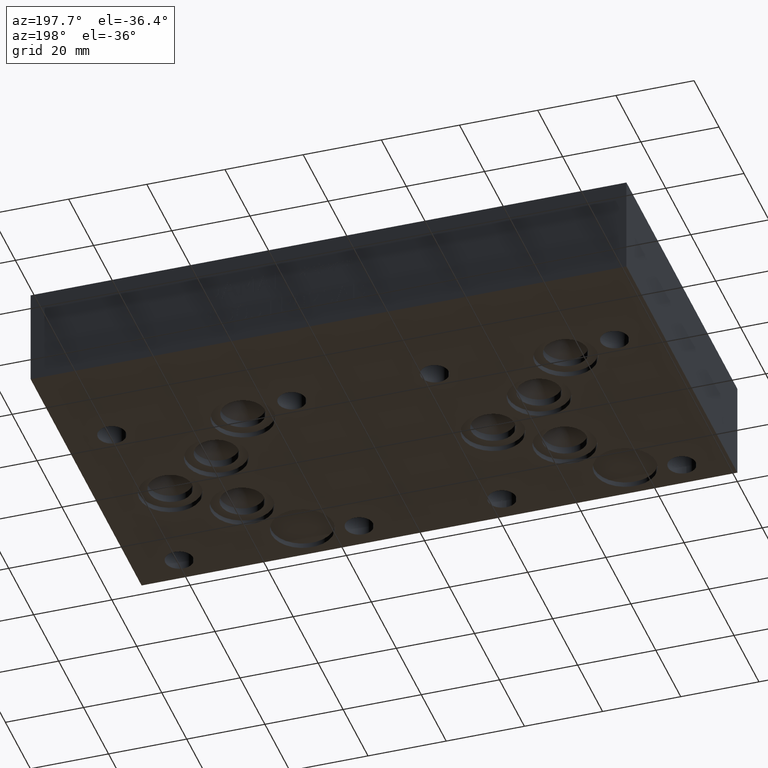
[diagram: clean part render]
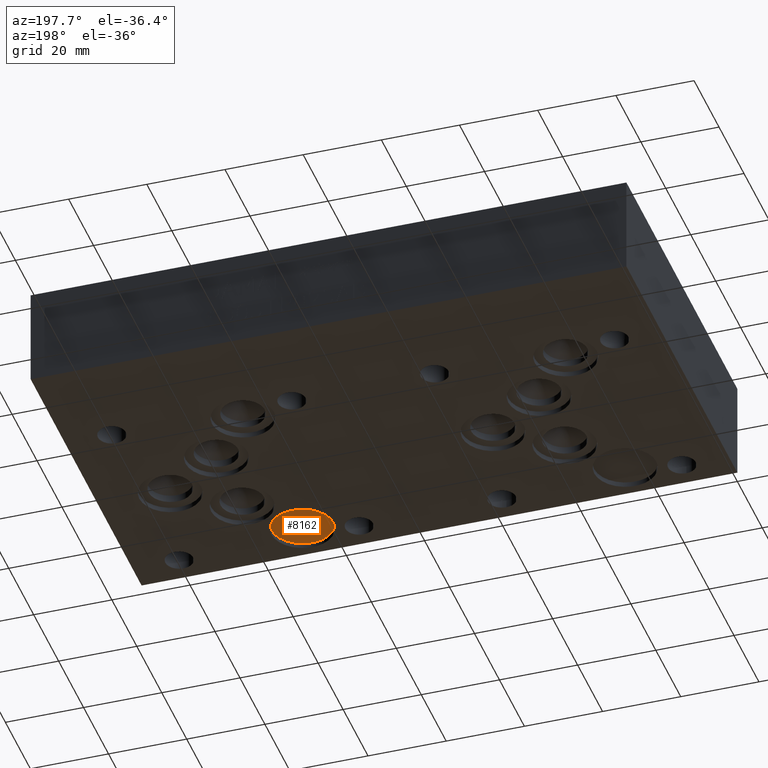
[diagram: same view with one face highlighted and labeled with its STEP entity id]
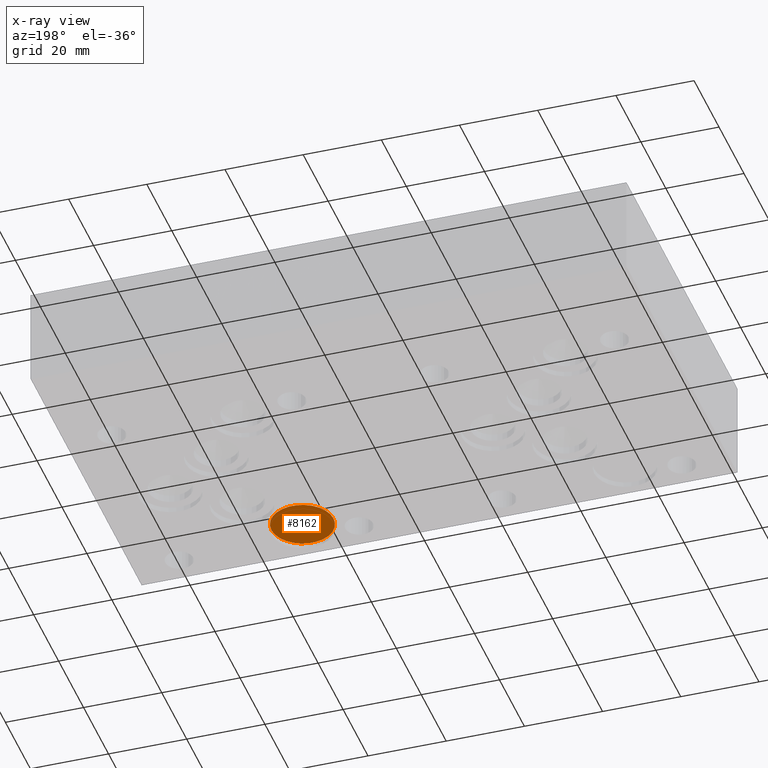
[diagram: x-ray of the same camera — body ghosted, the highlighted face saturated]
A machine part, auxiliary view. The second image highlights one B-rep face of the part: STEP entity #8162.
The next image is the same camera in x-ray: the body ghosted, the highlighted face saturated — about 0% of this face is hidden behind the body in this view.
In plain terms, the highlighted planar face has unit normal (0, 0, -1).
Its self-contained STEP definition (entity closure, byte-faithful):
#93=CIRCLE('',#8535,7.9375);
#498=PLANE('',#8536);
#880=FACE_OUTER_BOUND('',#1344,.T.);
#1344=EDGE_LOOP('',(#7093));
#3920=VERTEX_POINT('',#13687);
#4998=EDGE_CURVE('',#3920,#3920,#93,.T.);
#7093=ORIENTED_EDGE('',*,*,#4998,.T.);
#8162=ADVANCED_FACE('',(#880),#498,.T.);
#8535=AXIS2_PLACEMENT_3D('',#13689,#10009,#10010);
#8536=AXIS2_PLACEMENT_3D('',#13690,#10011,#10012);
#10009=DIRECTION('center_axis',(0.,0.,-1.));
#10010=DIRECTION('ref_axis',(1.,0.,0.));
#10011=DIRECTION('center_axis',(0.,0.,-1.));
#10012=DIRECTION('ref_axis',(1.,0.,0.));
#13687=CARTESIAN_POINT('',(100.01885,10.31875,1.3208));
#13689=CARTESIAN_POINT('Origin',(107.95635,10.31875,1.3208));
#13690=CARTESIAN_POINT('Origin',(107.95635,10.31875,1.3208));